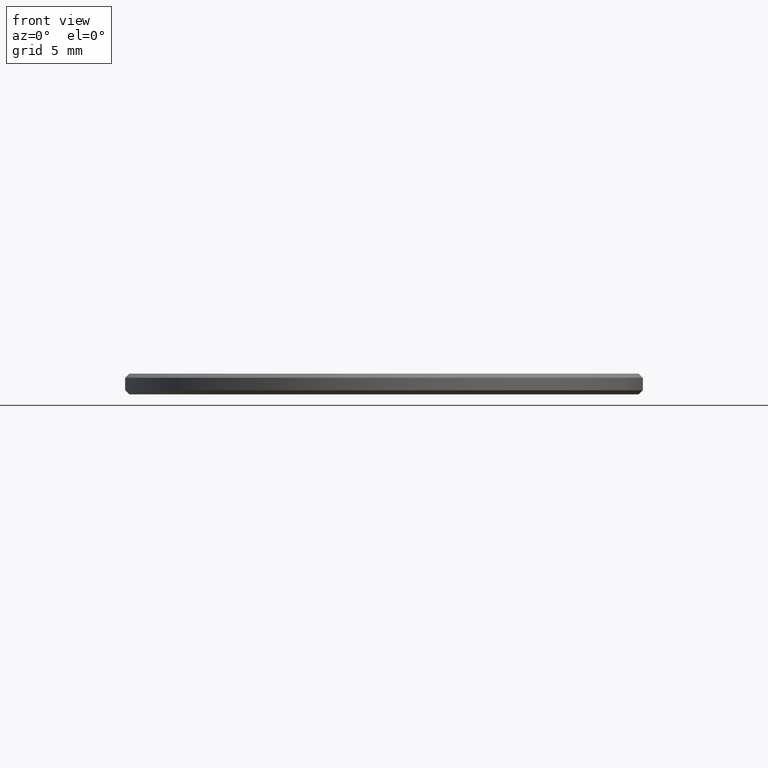
[diagram: clean part render]
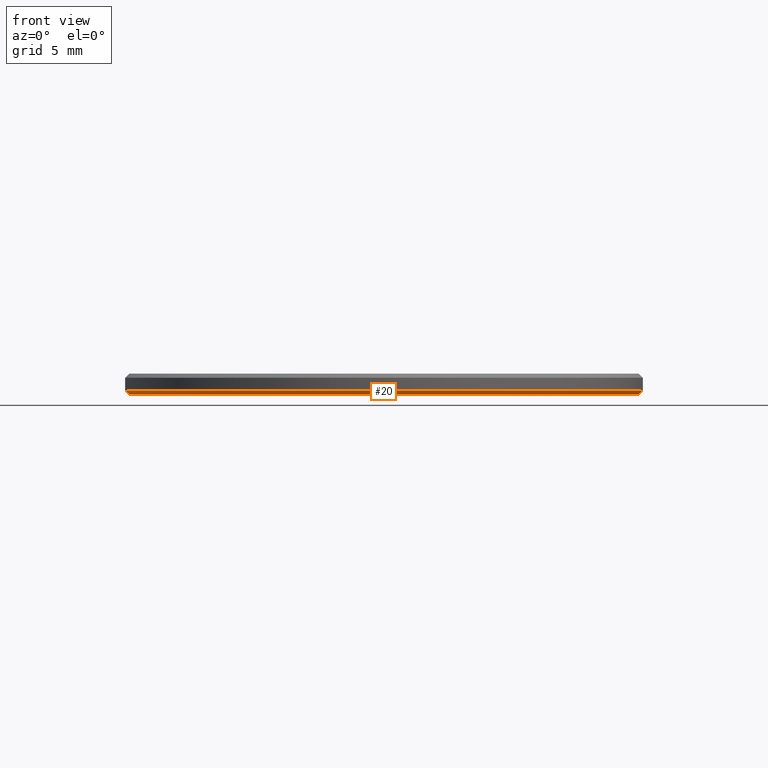
[diagram: same view with one face highlighted and labeled with its STEP entity id]
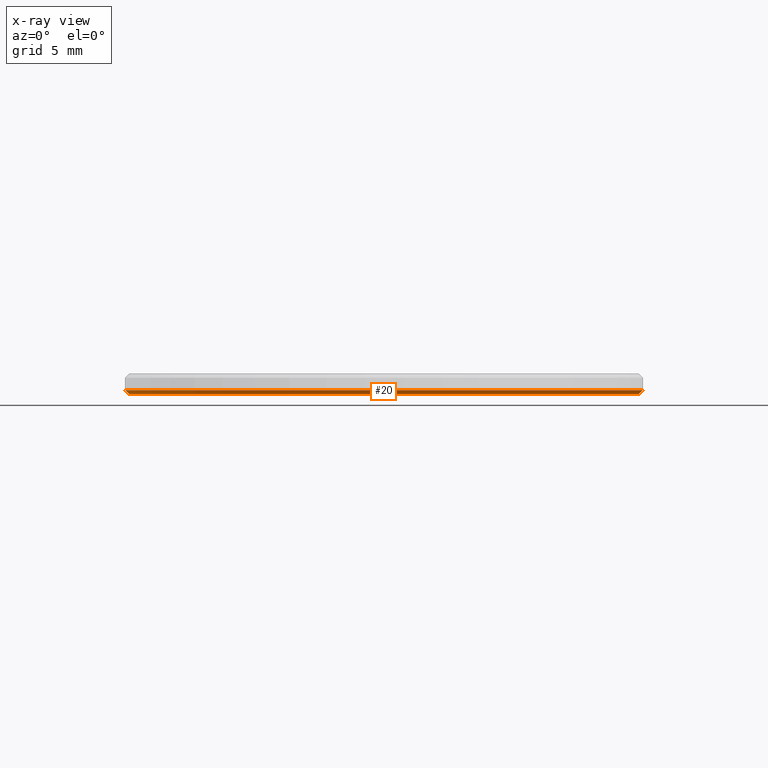
[diagram: x-ray of the same camera — body ghosted, the highlighted face saturated]
A machine part, front view. The second image highlights one B-rep face of the part: STEP entity #20.
The next image is the same camera in x-ray: the body ghosted, the highlighted face saturated — about 0% of this face is hidden behind the body in this view.
In plain terms, the highlighted conical surface has half-angle 45 deg.
Its self-contained STEP definition (entity closure, byte-faithful):
#14 = CARTESIAN_POINT ( 'NONE',  ( 0.000000000000000000, 0.000000000000000000, 0.1999999999999987899 ) ) ;
#17 = DIRECTION ( 'NONE',  ( 1.000000000000000000, 0.000000000000000000, 0.000000000000000000 ) ) ;
#20 = ADVANCED_FACE ( 'NONE', ( #174 ), #89, .T. ) ;
#28 = CARTESIAN_POINT ( 'NONE',  ( 12.50000000000000000, 0.000000000000000000, 0.1999999999999987899 ) ) ;
#29 = AXIS2_PLACEMENT_3D ( 'NONE', #39, #110, #131 ) ;
#39 = CARTESIAN_POINT ( 'NONE',  ( 0.000000000000000000, 0.000000000000000000, 0.1999999999999987899 ) ) ;
#45 = EDGE_CURVE ( 'NONE', #216, #157, #189, .T. ) ;
#55 = LINE ( 'NONE', #165, #58 ) ;
#56 = EDGE_CURVE ( 'NONE', #90, #157, #137, .T. ) ;
#58 = VECTOR ( 'NONE', #231, 1000.000000000000114 ) ;
#60 = CARTESIAN_POINT ( 'NONE',  ( -12.30000000000000249, 1.518562030942718164E-15, 0.000000000000000000 ) ) ;
#71 = CARTESIAN_POINT ( 'NONE',  ( 0.000000000000000000, 0.000000000000000000, 0.000000000000000000 ) ) ;
#73 = EDGE_CURVE ( 'NONE', #216, #218, #188, .T. ) ;
#84 = DIRECTION ( 'NONE',  ( -0.000000000000000000, -0.000000000000000000, 1.000000000000000000 ) ) ;
#89 = CONICAL_SURFACE ( 'NONE', #99, 12.50000000000000000, 0.7853981633974482790 ) ;
#90 = VERTEX_POINT ( 'NONE', #198 ) ;
#93 = EDGE_CURVE ( 'NONE', #218, #90, #55, .T. ) ;
#94 = CARTESIAN_POINT ( 'NONE',  ( 12.30000000000000249, 0.000000000000000000, 0.000000000000000000 ) ) ;
#99 = AXIS2_PLACEMENT_3D ( 'NONE', #14, #84, #142 ) ;
#110 = DIRECTION ( 'NONE',  ( -0.000000000000000000, -0.000000000000000000, 1.000000000000000000 ) ) ;
#113 = ORIENTED_EDGE ( 'NONE', *, *, #73, .F. ) ;
#131 = DIRECTION ( 'NONE',  ( 1.000000000000000000, 0.000000000000000000, 0.000000000000000000 ) ) ;
#137 = CIRCLE ( 'NONE', #29, 12.50000000000000000 ) ;
#138 = CARTESIAN_POINT ( 'NONE',  ( 12.50000000000000000, 1.530808498934191521E-15, 0.1999999999999987899 ) ) ;
#142 = DIRECTION ( 'NONE',  ( 1.000000000000000000, 0.000000000000000000, 0.000000000000000000 ) ) ;
#144 = EDGE_LOOP ( 'NONE', ( #236, #113, #193, #194 ) ) ;
#157 = VERTEX_POINT ( 'NONE', #138 ) ;
#165 = CARTESIAN_POINT ( 'NONE',  ( -12.50000000000000000, 1.530808498934191521E-15, 0.1999999999999987899 ) ) ;
#168 = DIRECTION ( 'NONE',  ( 0.7071067811865474617, 0.000000000000000000, 0.7071067811865474617 ) ) ;
#174 = FACE_OUTER_BOUND ( 'NONE', #144, .T. ) ;
#178 = AXIS2_PLACEMENT_3D ( 'NONE', #71, #179, #17 ) ;
#179 = DIRECTION ( 'NONE',  ( -0.000000000000000000, -0.000000000000000000, -1.000000000000000000 ) ) ;
#188 = CIRCLE ( 'NONE', #178, 12.30000000000000249 ) ;
#189 = LINE ( 'NONE', #28, #240 ) ;
#193 = ORIENTED_EDGE ( 'NONE', *, *, #45, .T. ) ;
#194 = ORIENTED_EDGE ( 'NONE', *, *, #56, .F. ) ;
#198 = CARTESIAN_POINT ( 'NONE',  ( -12.50000000000000000, 0.000000000000000000, 0.1999999999999987899 ) ) ;
#216 = VERTEX_POINT ( 'NONE', #94 ) ;
#218 = VERTEX_POINT ( 'NONE', #60 ) ;
#231 = DIRECTION ( 'NONE',  ( -0.7071067811865474617, 8.659560562354932858E-17, 0.7071067811865474617 ) ) ;
#236 = ORIENTED_EDGE ( 'NONE', *, *, #93, .F. ) ;
#240 = VECTOR ( 'NONE', #168, 1000.000000000000114 ) ;